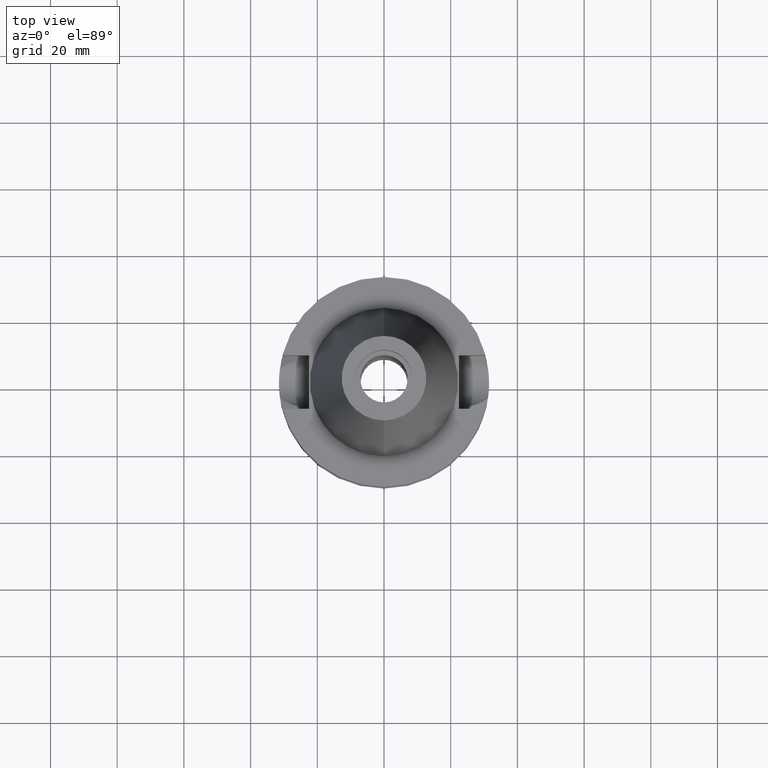
[diagram: clean part render]
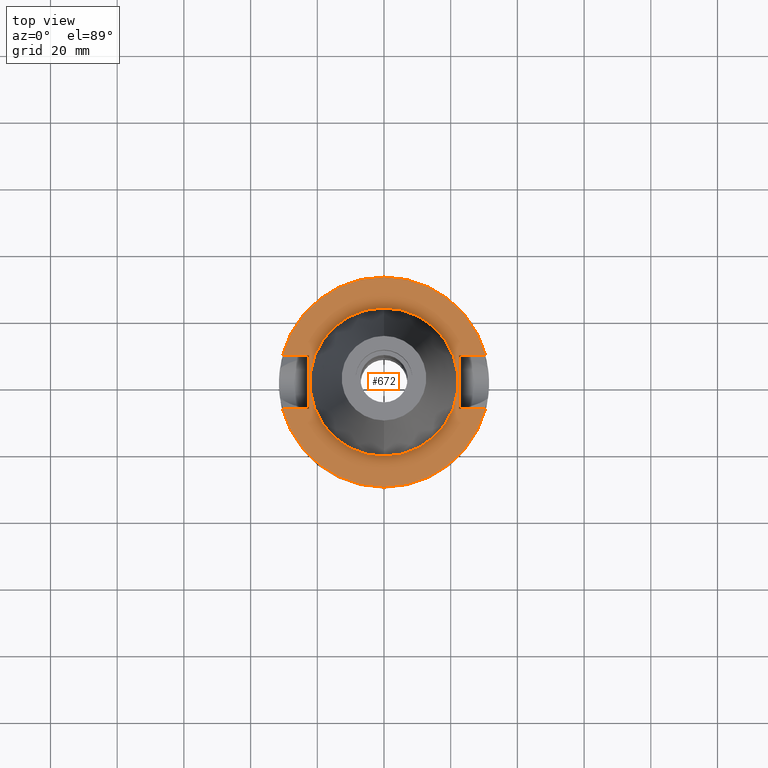
[diagram: same view with one face highlighted and labeled with its STEP entity id]
A machine part, top view. The second image highlights one B-rep face of the part: STEP entity #672.
In plain terms, the highlighted planar face has unit normal (0, 0, -1).
Its self-contained STEP definition (entity closure, byte-faithful):
#2 = VERTEX_POINT ( 'NONE', #2759 ) ;
#7 = CARTESIAN_POINT ( 'NONE',  ( 0.0000000000000000000, 0.0000000000000000000, -1.000000000000000000 ) ) ;
#11 = LINE ( 'NONE', #1862, #1170 ) ;
#20 = CARTESIAN_POINT ( 'NONE',  ( -22.50000000000000000, -8.050000000000000711, -1.000000000000000000 ) ) ;
#87 = LINE ( 'NONE', #855, #1132 ) ;
#173 = AXIS2_PLACEMENT_3D ( 'NONE', #874, #2370, #909 ) ;
#246 = EDGE_CURVE ( 'NONE', #677, #2553, #11, .T. ) ;
#324 = DIRECTION ( 'NONE',  ( 1.000000000000000000, -3.550916904668000126E-14, 0.0000000000000000000 ) ) ;
#328 = CARTESIAN_POINT ( 'NONE',  ( 0.0000000000000000000, 0.0000000000000000000, -1.000000000000000000 ) ) ;
#338 = DIRECTION ( 'NONE',  ( 0.0000000000000000000, 0.0000000000000000000, 1.000000000000000000 ) ) ;
#361 = ORIENTED_EDGE ( 'NONE', *, *, #694, .F. ) ;
#420 = AXIS2_PLACEMENT_3D ( 'NONE', #1371, #2343, #890 ) ;
#481 = CARTESIAN_POINT ( 'NONE',  ( -30.45402272279000044, -8.050000000000000711, -1.000000000000000000 ) ) ;
#491 = ORIENTED_EDGE ( 'NONE', *, *, #2143, .T. ) ;
#524 = CARTESIAN_POINT ( 'NONE',  ( 0.0000000000000000000, 0.0000000000000000000, -1.000000000000000000 ) ) ;
#545 = CARTESIAN_POINT ( 'NONE',  ( 22.50000000000000000, -8.050000000000000711, -1.000000000000000000 ) ) ;
#562 = EDGE_LOOP ( 'NONE', ( #1805, #2222 ) ) ;
#576 = LINE ( 'NONE', #2512, #1303 ) ;
#585 = EDGE_CURVE ( 'NONE', #1482, #1556, #2284, .T. ) ;
#644 = FACE_OUTER_BOUND ( 'NONE', #2212, .T. ) ;
#661 = CARTESIAN_POINT ( 'NONE',  ( -30.45402272279000044, 8.050000000000000711, -1.000000000000000000 ) ) ;
#672 = ADVANCED_FACE ( 'NONE', ( #644, #3110 ), #2404, .F. ) ;
#675 = AXIS2_PLACEMENT_3D ( 'NONE', #328, #338, #1283 ) ;
#677 = VERTEX_POINT ( 'NONE', #661 ) ;
#681 = DIRECTION ( 'NONE',  ( 0.0000000000000000000, 0.0000000000000000000, -1.000000000000000000 ) ) ;
#688 = ORIENTED_EDGE ( 'NONE', *, *, #894, .F. ) ;
#694 = EDGE_CURVE ( 'NONE', #677, #2793, #1571, .T. ) ;
#855 = CARTESIAN_POINT ( 'NONE',  ( 22.50000000000000000, 8.050000000000000711, -1.000000000000000000 ) ) ;
#874 = CARTESIAN_POINT ( 'NONE',  ( 0.0000000000000000000, 0.0000000000000000000, -1.000000000000000000 ) ) ;
#882 = CARTESIAN_POINT ( 'NONE',  ( 0.0000000000000000000, -22.22500000000000142, -1.000000000000000000 ) ) ;
#890 = DIRECTION ( 'NONE',  ( 0.0000000000000000000, -1.000000000000000000, 0.0000000000000000000 ) ) ;
#894 = EDGE_CURVE ( 'NONE', #1577, #2, #974, .T. ) ;
#909 = DIRECTION ( 'NONE',  ( 0.0000000000000000000, 1.000000000000000000, 0.0000000000000000000 ) ) ;
#936 = VERTEX_POINT ( 'NONE', #1685 ) ;
#972 = DIRECTION ( 'NONE',  ( 0.0000000000000000000, 1.000000000000000000, 0.0000000000000000000 ) ) ;
#974 = LINE ( 'NONE', #545, #2346 ) ;
#1013 = CIRCLE ( 'NONE', #2483, 22.22500000000000142 ) ;
#1066 = DIRECTION ( 'NONE',  ( 1.000000000000000000, -3.506251283225999947E-14, 0.0000000000000000000 ) ) ;
#1087 = EDGE_CURVE ( 'NONE', #936, #1577, #87, .T. ) ;
#1132 = VECTOR ( 'NONE', #2254, 1000.000000000000000 ) ;
#1170 = VECTOR ( 'NONE', #2153, 1000.000000000000000 ) ;
#1210 = LINE ( 'NONE', #20, #2277 ) ;
#1283 = DIRECTION ( 'NONE',  ( 0.0000000000000000000, 1.000000000000000000, 0.0000000000000000000 ) ) ;
#1302 = CARTESIAN_POINT ( 'NONE',  ( -22.50000000000000000, 8.050000000000000711, -1.000000000000000000 ) ) ;
#1303 = VECTOR ( 'NONE', #1066, 1000.000000000000000 ) ;
#1308 = VECTOR ( 'NONE', #324, 1000.000000000000000 ) ;
#1328 = LINE ( 'NONE', #2285, #1308 ) ;
#1341 = CARTESIAN_POINT ( 'NONE',  ( 22.50000000000000000, -8.050000000000000711, -1.000000000000000000 ) ) ;
#1363 = CIRCLE ( 'NONE', #1755, 31.50000000000000000 ) ;
#1371 = CARTESIAN_POINT ( 'NONE',  ( 0.0000000000000000000, 0.0000000000000000000, -1.000000000000000000 ) ) ;
#1464 = DIRECTION ( 'NONE',  ( 1.000000000000000000, 3.595582526110999949E-14, 0.0000000000000000000 ) ) ;
#1482 = VERTEX_POINT ( 'NONE', #2024 ) ;
#1556 = VERTEX_POINT ( 'NONE', #882 ) ;
#1571 = CIRCLE ( 'NONE', #173, 31.50000000000000000 ) ;
#1577 = VERTEX_POINT ( 'NONE', #1341 ) ;
#1629 = ORIENTED_EDGE ( 'NONE', *, *, #2317, .F. ) ;
#1685 = CARTESIAN_POINT ( 'NONE',  ( 22.50000000000000000, 8.050000000000000711, -1.000000000000000000 ) ) ;
#1726 = VERTEX_POINT ( 'NONE', #481 ) ;
#1755 = AXIS2_PLACEMENT_3D ( 'NONE', #7, #681, #3060 ) ;
#1805 = ORIENTED_EDGE ( 'NONE', *, *, #585, .F. ) ;
#1862 = CARTESIAN_POINT ( 'NONE',  ( -30.45402272279000044, 8.050000000000000711, -1.000000000000000000 ) ) ;
#1971 = DIRECTION ( 'NONE',  ( 0.0000000000000000000, -1.000000000000000000, 0.0000000000000000000 ) ) ;
#2024 = CARTESIAN_POINT ( 'NONE',  ( 0.0000000000000000000, 22.22500000000000142, -1.000000000000000000 ) ) ;
#2143 = EDGE_CURVE ( 'NONE', #936, #2793, #576, .T. ) ;
#2153 = DIRECTION ( 'NONE',  ( 1.000000000000000000, 3.550916904668000126E-14, 0.0000000000000000000 ) ) ;
#2212 = EDGE_LOOP ( 'NONE', ( #2822, #1629, #688, #2373, #491, #361, #2308, #2374 ) ) ;
#2222 = ORIENTED_EDGE ( 'NONE', *, *, #2852, .F. ) ;
#2226 = CARTESIAN_POINT ( 'NONE',  ( 30.45402272279000044, 8.050000000000000711, -1.000000000000000000 ) ) ;
#2254 = DIRECTION ( 'NONE',  ( 0.0000000000000000000, -1.000000000000000000, 0.0000000000000000000 ) ) ;
#2277 = VECTOR ( 'NONE', #972, 1000.000000000000000 ) ;
#2284 = CIRCLE ( 'NONE', #675, 22.22500000000000142 ) ;
#2285 = CARTESIAN_POINT ( 'NONE',  ( -30.45402272279000044, -8.050000000000000711, -1.000000000000000000 ) ) ;
#2308 = ORIENTED_EDGE ( 'NONE', *, *, #246, .T. ) ;
#2317 = EDGE_CURVE ( 'NONE', #2, #1726, #1363, .T. ) ;
#2343 = DIRECTION ( 'NONE',  ( 0.0000000000000000000, 0.0000000000000000000, -1.000000000000000000 ) ) ;
#2346 = VECTOR ( 'NONE', #1464, 1000.000000000000000 ) ;
#2370 = DIRECTION ( 'NONE',  ( 0.0000000000000000000, 0.0000000000000000000, -1.000000000000000000 ) ) ;
#2373 = ORIENTED_EDGE ( 'NONE', *, *, #1087, .F. ) ;
#2374 = ORIENTED_EDGE ( 'NONE', *, *, #2906, .F. ) ;
#2404 = PLANE ( 'NONE',  #420 ) ;
#2483 = AXIS2_PLACEMENT_3D ( 'NONE', #524, #2705, #1971 ) ;
#2512 = CARTESIAN_POINT ( 'NONE',  ( 22.50000000000000000, 8.050000000000000711, -1.000000000000000000 ) ) ;
#2553 = VERTEX_POINT ( 'NONE', #1302 ) ;
#2705 = DIRECTION ( 'NONE',  ( 0.0000000000000000000, 0.0000000000000000000, 1.000000000000000000 ) ) ;
#2759 = CARTESIAN_POINT ( 'NONE',  ( 30.45402272279000044, -8.050000000000000711, -1.000000000000000000 ) ) ;
#2786 = CARTESIAN_POINT ( 'NONE',  ( -22.50000000000000000, -8.050000000000000711, -1.000000000000000000 ) ) ;
#2793 = VERTEX_POINT ( 'NONE', #2226 ) ;
#2822 = ORIENTED_EDGE ( 'NONE', *, *, #2961, .F. ) ;
#2852 = EDGE_CURVE ( 'NONE', #1556, #1482, #1013, .T. ) ;
#2906 = EDGE_CURVE ( 'NONE', #2938, #2553, #1210, .T. ) ;
#2938 = VERTEX_POINT ( 'NONE', #2786 ) ;
#2961 = EDGE_CURVE ( 'NONE', #1726, #2938, #1328, .T. ) ;
#3060 = DIRECTION ( 'NONE',  ( 0.0000000000000000000, -1.000000000000000000, 0.0000000000000000000 ) ) ;
#3110 = FACE_BOUND ( 'NONE', #562, .T. ) ;